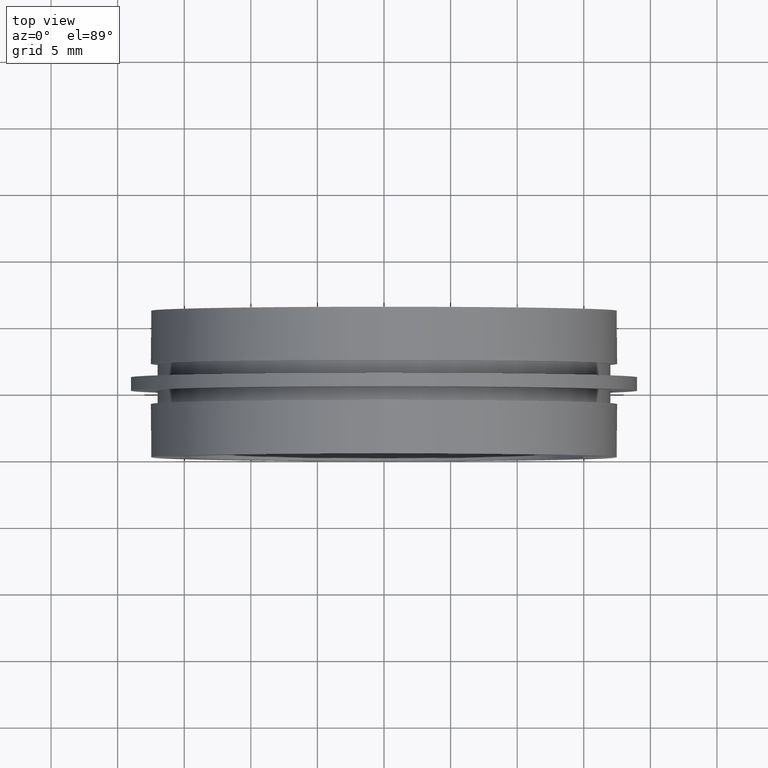
[diagram: clean part render]
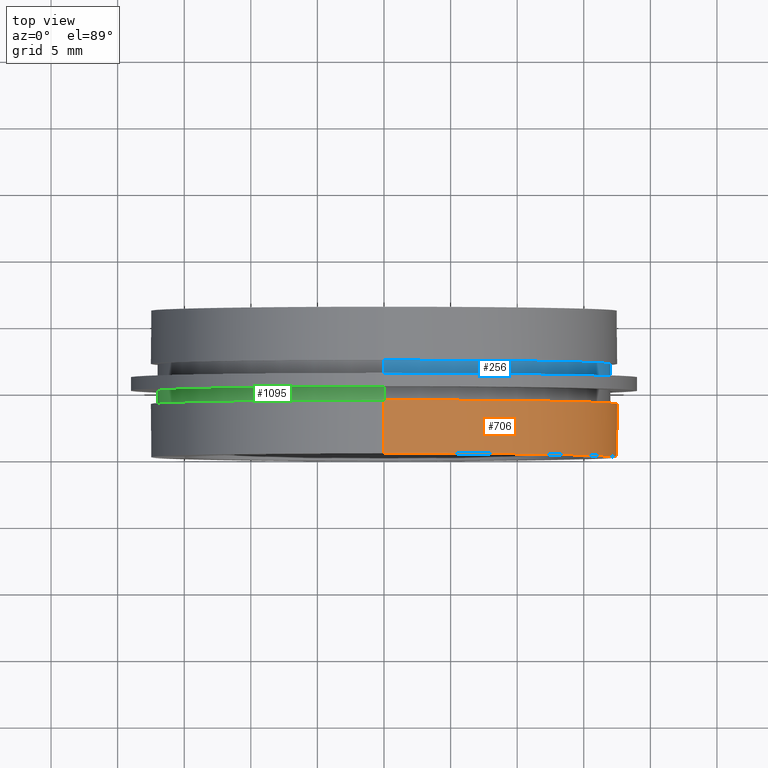
[diagram: same view with three faces highlighted in distinct colors, each labeled with its STEP entity id]
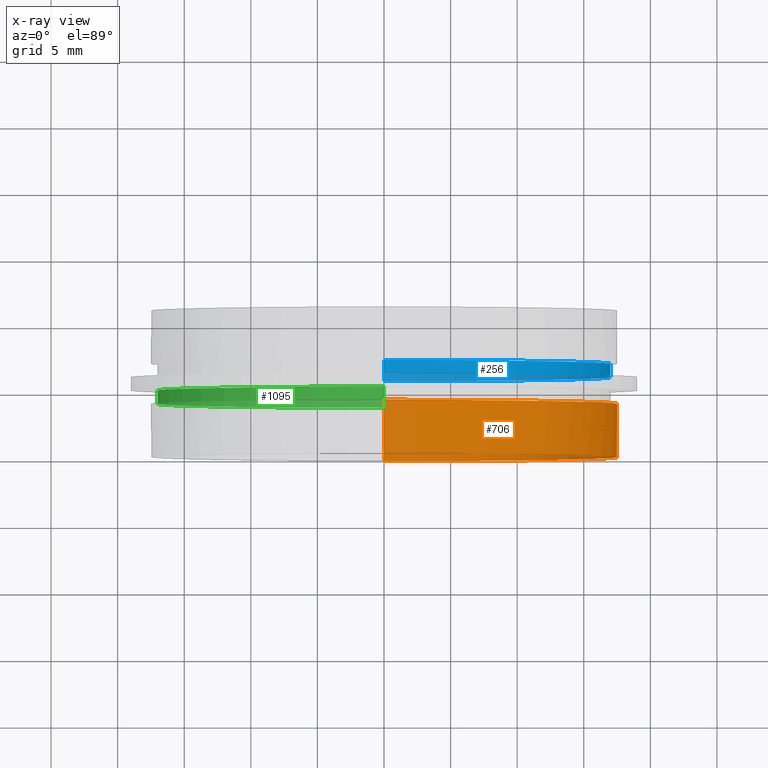
[diagram: x-ray of the same camera — body ghosted, the three highlighted faces saturated]
A machine part, top view with three faces highlighted in distinct colors.
The next image is the same camera in x-ray (body ghosted, the three faces saturated) — at least one of them is partly hidden behind the body in this view.
Their STEP definitions:

[orange] entity #706 — the highlighted cylindrical surface (partial cylindrical patch) has radius 17.5 mm, axis along (-0, 1, -0).
#9 = CIRCLE ( 'NONE', #638, 17.49999999999999600 ) ;
#32 = CARTESIAN_POINT ( 'NONE',  ( 0.0000000000000000000, 4.000000000000000000, 0.0000000000000000000 ) ) ;
#46 = FACE_OUTER_BOUND ( 'NONE', #1060, .T. ) ;
#91 = VECTOR ( 'NONE', #856, 1000.000000000000000 ) ;
#122 = AXIS2_PLACEMENT_3D ( 'NONE', #928, #667, #1113 ) ;
#134 = ORIENTED_EDGE ( 'NONE', *, *, #232, .T. ) ;
#147 = CARTESIAN_POINT ( 'NONE',  ( 0.0000000000000000000, 22.67749945107591400, 0.0000000000000000000 ) ) ;
#152 = CARTESIAN_POINT ( 'NONE',  ( 17.47140520965614400, 22.67749945107591400, 1.000000000000003800 ) ) ;
#188 = CARTESIAN_POINT ( 'NONE',  ( 2.143131898507867900E-015, 22.67749945107591400, -17.49999999999999600 ) ) ;
#220 = VECTOR ( 'NONE', #669, 1000.000000000000000 ) ;
#224 = DIRECTION ( 'NONE',  ( -0.0000000000000000000, 1.000000000000000000, -0.0000000000000000000 ) ) ;
#232 = EDGE_CURVE ( 'NONE', #605, #794, #9, .T. ) ;
#264 = DIRECTION ( 'NONE',  ( -0.0000000000000000000, 1.000000000000000000, -0.0000000000000000000 ) ) ;
#269 = VERTEX_POINT ( 'NONE', #452 ) ;
#270 = CIRCLE ( 'NONE', #1069, 17.49999999999999600 ) ;
#300 = VECTOR ( 'NONE', #840, 1000.000000000000000 ) ;
#305 = DIRECTION ( 'NONE',  ( -0.0000000000000000000, 1.000000000000000000, -0.0000000000000000000 ) ) ;
#313 = CARTESIAN_POINT ( 'NONE',  ( 0.0000000000000000000, 0.0000000000000000000, 17.49999999999999600 ) ) ;
#336 = DIRECTION ( 'NONE',  ( 0.0000000000000000000, 0.0000000000000000000, 1.000000000000000000 ) ) ;
#357 = VERTEX_POINT ( 'NONE', #414 ) ;
#366 = CARTESIAN_POINT ( 'NONE',  ( 17.47140520965614400, 1.999999999999998200, 1.000000000000000200 ) ) ;
#370 = EDGE_CURVE ( 'NONE', #269, #1062, #754, .T. ) ;
#373 = ORIENTED_EDGE ( 'NONE', *, *, #501, .F. ) ;
#407 = ORIENTED_EDGE ( 'NONE', *, *, #1124, .F. ) ;
#408 = LINE ( 'NONE', #152, #220 ) ;
#414 = CARTESIAN_POINT ( 'NONE',  ( 2.143131898507867900E-015, 0.0000000000000000000, -17.49999999999999600 ) ) ;
#452 = CARTESIAN_POINT ( 'NONE',  ( 17.47140520965614700, 2.000000000000000000, -0.9999999999999995600 ) ) ;
#501 = EDGE_CURVE ( 'NONE', #1062, #794, #408, .T. ) ;
#521 = CARTESIAN_POINT ( 'NONE',  ( 17.47140520965614400, 0.0000000000000000000, -1.000000000000000000 ) ) ;
#538 = ORIENTED_EDGE ( 'NONE', *, *, #800, .T. ) ;
#557 = CARTESIAN_POINT ( 'NONE',  ( 17.47140520965614400, 0.0000000000000000000, 1.000000000000000000 ) ) ;
#562 = VERTEX_POINT ( 'NONE', #1016 ) ;
#605 = VERTEX_POINT ( 'NONE', #313 ) ;
#613 = CARTESIAN_POINT ( 'NONE',  ( 0.0000000000000000000, 0.0000000000000000000, 0.0000000000000000000 ) ) ;
#624 = DIRECTION ( 'NONE',  ( -0.0000000000000000000, 1.000000000000000000, -0.0000000000000000000 ) ) ;
#628 = VECTOR ( 'NONE', #624, 1000.000000000000000 ) ;
#638 = AXIS2_PLACEMENT_3D ( 'NONE', #613, #264, #336 ) ;
#643 = DIRECTION ( 'NONE',  ( 0.0000000000000000000, 0.0000000000000000000, 1.000000000000000000 ) ) ;
#667 = DIRECTION ( 'NONE',  ( -0.0000000000000000000, -1.000000000000000000, -0.0000000000000000000 ) ) ;
#669 = DIRECTION ( 'NONE',  ( 0.0000000000000000000, -1.000000000000000000, 0.0000000000000000000 ) ) ;
#679 = AXIS2_PLACEMENT_3D ( 'NONE', #147, #1128, #940 ) ;
#680 = EDGE_CURVE ( 'NONE', #736, #269, #1054, .T. ) ;
#706 = ADVANCED_FACE ( 'NONE', ( #46 ), #1129, .T. ) ;
#729 = LINE ( 'NONE', #780, #628 ) ;
#736 = VERTEX_POINT ( 'NONE', #521 ) ;
#738 = VERTEX_POINT ( 'NONE', #1143 ) ;
#751 = CARTESIAN_POINT ( 'NONE',  ( 0.0000000000000000000, 0.0000000000000000000, 0.0000000000000000000 ) ) ;
#754 = CIRCLE ( 'NONE', #122, 17.49999999999999600 ) ;
#756 = CIRCLE ( 'NONE', #760, 17.49999999999999600 ) ;
#760 = AXIS2_PLACEMENT_3D ( 'NONE', #751, #224, #995 ) ;
#780 = CARTESIAN_POINT ( 'NONE',  ( 0.0000000000000000000, 22.67749945107591400, 17.49999999999999600 ) ) ;
#794 = VERTEX_POINT ( 'NONE', #557 ) ;
#800 = EDGE_CURVE ( 'NONE', #357, #562, #939, .T. ) ;
#814 = EDGE_CURVE ( 'NONE', #738, #562, #270, .T. ) ;
#840 = DIRECTION ( 'NONE',  ( -0.0000000000000000000, 1.000000000000000000, -0.0000000000000000000 ) ) ;
#856 = DIRECTION ( 'NONE',  ( -0.0000000000000000000, 1.000000000000000000, -0.0000000000000000000 ) ) ;
#860 = ORIENTED_EDGE ( 'NONE', *, *, #1094, .T. ) ;
#883 = ORIENTED_EDGE ( 'NONE', *, *, #814, .F. ) ;
#928 = CARTESIAN_POINT ( 'NONE',  ( 0.0000000000000000000, 1.999999999999998200, 0.0000000000000000000 ) ) ;
#939 = LINE ( 'NONE', #188, #300 ) ;
#940 = DIRECTION ( 'NONE',  ( 0.0000000000000000000, 0.0000000000000000000, 1.000000000000000000 ) ) ;
#995 = DIRECTION ( 'NONE',  ( 0.0000000000000000000, 0.0000000000000000000, 1.000000000000000000 ) ) ;
#1016 = CARTESIAN_POINT ( 'NONE',  ( 2.143131898507867900E-015, 4.000000000000000000, -17.49999999999999600 ) ) ;
#1021 = ORIENTED_EDGE ( 'NONE', *, *, #680, .F. ) ;
#1054 = LINE ( 'NONE', #1132, #91 ) ;
#1060 = EDGE_LOOP ( 'NONE', ( #860, #538, #883, #407, #134, #373, #1063, #1021 ) ) ;
#1062 = VERTEX_POINT ( 'NONE', #366 ) ;
#1063 = ORIENTED_EDGE ( 'NONE', *, *, #370, .F. ) ;
#1069 = AXIS2_PLACEMENT_3D ( 'NONE', #32, #305, #643 ) ;
#1094 = EDGE_CURVE ( 'NONE', #736, #357, #756, .T. ) ;
#1113 = DIRECTION ( 'NONE',  ( 3.730349362740526000E-014, 0.0000000000000000000, 1.000000000000000000 ) ) ;
#1124 = EDGE_CURVE ( 'NONE', #605, #738, #729, .T. ) ;
#1128 = DIRECTION ( 'NONE',  ( -0.0000000000000000000, 1.000000000000000000, -0.0000000000000000000 ) ) ;
#1129 = CYLINDRICAL_SURFACE ( 'NONE', #679, 17.49999999999999600 ) ;
#1132 = CARTESIAN_POINT ( 'NONE',  ( 17.47140520965614400, 22.67749945107591400, -0.9999999999999943400 ) ) ;
#1143 = CARTESIAN_POINT ( 'NONE',  ( 0.0000000000000000000, 4.000000000000000000, 17.49999999999999600 ) ) ;

[blue] entity #256 — the highlighted cylindrical surface (partial cylindrical patch) has radius 17 mm, axis along (-0, 1, -0).
#33 = CARTESIAN_POINT ( 'NONE',  ( 0.0000000000000000000, 22.67749945107591400, 0.0000000000000000000 ) ) ;
#47 = EDGE_CURVE ( 'NONE', #829, #413, #602, .T. ) ;
#77 = CARTESIAN_POINT ( 'NONE',  ( 0.0000000000000000000, 6.999999999999999100, 17.00000000000000400 ) ) ;
#83 = CARTESIAN_POINT ( 'NONE',  ( 2.081899558550500300E-015, 22.67749945107591400, -17.00000000000000000 ) ) ;
#137 = DIRECTION ( 'NONE',  ( -0.0000000000000000000, 1.000000000000000000, -0.0000000000000000000 ) ) ;
#190 = VERTEX_POINT ( 'NONE', #420 ) ;
#230 = CYLINDRICAL_SURFACE ( 'NONE', #470, 17.00000000000000000 ) ;
#256 = ADVANCED_FACE ( 'NONE', ( #746 ), #230, .T. ) ;
#278 = DIRECTION ( 'NONE',  ( 0.0000000000000000000, 0.0000000000000000000, 1.000000000000000000 ) ) ;
#282 = AXIS2_PLACEMENT_3D ( 'NONE', #851, #1126, #675 ) ;
#286 = LINE ( 'NONE', #83, #905 ) ;
#298 = ORIENTED_EDGE ( 'NONE', *, *, #702, .T. ) ;
#323 = DIRECTION ( 'NONE',  ( -0.0000000000000000000, 1.000000000000000000, -0.0000000000000000000 ) ) ;
#335 = CARTESIAN_POINT ( 'NONE',  ( 0.0000000000000000000, 5.999999999999998200, 17.00000000000000000 ) ) ;
#367 = ORIENTED_EDGE ( 'NONE', *, *, #1088, .F. ) ;
#382 = ORIENTED_EDGE ( 'NONE', *, *, #753, .T. ) ;
#398 = DIRECTION ( 'NONE',  ( -0.0000000000000000000, 1.000000000000000000, -0.0000000000000000000 ) ) ;
#413 = VERTEX_POINT ( 'NONE', #1140 ) ;
#420 = CARTESIAN_POINT ( 'NONE',  ( 2.081899558550500300E-015, 5.999999999999998200, -17.00000000000000000 ) ) ;
#470 = AXIS2_PLACEMENT_3D ( 'NONE', #33, #704, #278 ) ;
#602 = CIRCLE ( 'NONE', #811, 17.00000000000000400 ) ;
#635 = EDGE_LOOP ( 'NONE', ( #298, #382, #661, #367 ) ) ;
#649 = VECTOR ( 'NONE', #137, 1000.000000000000000 ) ;
#661 = ORIENTED_EDGE ( 'NONE', *, *, #47, .F. ) ;
#675 = DIRECTION ( 'NONE',  ( 0.0000000000000000000, 0.0000000000000000000, 1.000000000000000000 ) ) ;
#686 = CARTESIAN_POINT ( 'NONE',  ( 0.0000000000000000000, 22.67749945107591400, 17.00000000000000000 ) ) ;
#702 = EDGE_CURVE ( 'NONE', #709, #190, #965, .T. ) ;
#704 = DIRECTION ( 'NONE',  ( -0.0000000000000000000, 1.000000000000000000, -0.0000000000000000000 ) ) ;
#709 = VERTEX_POINT ( 'NONE', #335 ) ;
#746 = FACE_OUTER_BOUND ( 'NONE', #635, .T. ) ;
#753 = EDGE_CURVE ( 'NONE', #190, #413, #286, .T. ) ;
#770 = LINE ( 'NONE', #686, #649 ) ;
#811 = AXIS2_PLACEMENT_3D ( 'NONE', #923, #323, #835 ) ;
#829 = VERTEX_POINT ( 'NONE', #77 ) ;
#835 = DIRECTION ( 'NONE',  ( 0.0000000000000000000, 0.0000000000000000000, 1.000000000000000000 ) ) ;
#851 = CARTESIAN_POINT ( 'NONE',  ( 0.0000000000000000000, 5.999999999999998200, 0.0000000000000000000 ) ) ;
#905 = VECTOR ( 'NONE', #398, 1000.000000000000000 ) ;
#923 = CARTESIAN_POINT ( 'NONE',  ( 0.0000000000000000000, 6.999999999999999100, 0.0000000000000000000 ) ) ;
#965 = CIRCLE ( 'NONE', #282, 17.00000000000000000 ) ;
#1088 = EDGE_CURVE ( 'NONE', #709, #829, #770, .T. ) ;
#1126 = DIRECTION ( 'NONE',  ( -0.0000000000000000000, 1.000000000000000000, -0.0000000000000000000 ) ) ;
#1140 = CARTESIAN_POINT ( 'NONE',  ( 2.081899558550500700E-015, 6.999999999999999100, -17.00000000000000400 ) ) ;

[green] entity #1095 — the highlighted cylindrical surface (partial cylindrical patch) has radius 17 mm, axis along (-0, 1, -0).
#6 = DIRECTION ( 'NONE',  ( -0.0000000000000000000, 1.000000000000000000, -0.0000000000000000000 ) ) ;
#10 = CARTESIAN_POINT ( 'NONE',  ( 0.0000000000000000000, 22.67749945107591400, 17.00000000000000000 ) ) ;
#17 = AXIS2_PLACEMENT_3D ( 'NONE', #94, #1110, #1023 ) ;
#21 = DIRECTION ( 'NONE',  ( -0.0000000000000000000, 1.000000000000000000, -0.0000000000000000000 ) ) ;
#28 = VERTEX_POINT ( 'NONE', #194 ) ;
#51 = EDGE_LOOP ( 'NONE', ( #803, #514, #929, #541 ) ) ;
#79 = DIRECTION ( 'NONE',  ( 0.0000000000000000000, 0.0000000000000000000, 1.000000000000000000 ) ) ;
#90 = EDGE_CURVE ( 'NONE', #114, #609, #705, .T. ) ;
#94 = CARTESIAN_POINT ( 'NONE',  ( 0.0000000000000000000, 5.000000000000000900, 0.0000000000000000000 ) ) ;
#114 = VERTEX_POINT ( 'NONE', #472 ) ;
#118 = VERTEX_POINT ( 'NONE', #664 ) ;
#162 = VECTOR ( 'NONE', #21, 1000.000000000000000 ) ;
#194 = CARTESIAN_POINT ( 'NONE',  ( 2.081899558550500300E-015, 5.000000000000000900, -17.00000000000000000 ) ) ;
#246 = EDGE_CURVE ( 'NONE', #609, #118, #363, .T. ) ;
#315 = EDGE_CURVE ( 'NONE', #28, #118, #988, .T. ) ;
#363 = LINE ( 'NONE', #10, #666 ) ;
#472 = CARTESIAN_POINT ( 'NONE',  ( 2.081899558550499900E-015, 4.000000000000000000, -16.99999999999999600 ) ) ;
#493 = DIRECTION ( 'NONE',  ( 0.0000000000000000000, 0.0000000000000000000, 1.000000000000000000 ) ) ;
#514 = ORIENTED_EDGE ( 'NONE', *, *, #90, .T. ) ;
#541 = ORIENTED_EDGE ( 'NONE', *, *, #315, .F. ) ;
#568 = CYLINDRICAL_SURFACE ( 'NONE', #739, 17.00000000000000000 ) ;
#577 = DIRECTION ( 'NONE',  ( -0.0000000000000000000, 1.000000000000000000, -0.0000000000000000000 ) ) ;
#609 = VERTEX_POINT ( 'NONE', #1011 ) ;
#664 = CARTESIAN_POINT ( 'NONE',  ( 0.0000000000000000000, 5.000000000000000900, 17.00000000000000000 ) ) ;
#666 = VECTOR ( 'NONE', #1044, 1000.000000000000000 ) ;
#705 = CIRCLE ( 'NONE', #1145, 16.99999999999999600 ) ;
#712 = CARTESIAN_POINT ( 'NONE',  ( 0.0000000000000000000, 22.67749945107591400, 0.0000000000000000000 ) ) ;
#739 = AXIS2_PLACEMENT_3D ( 'NONE', #712, #6, #493 ) ;
#803 = ORIENTED_EDGE ( 'NONE', *, *, #958, .F. ) ;
#810 = FACE_OUTER_BOUND ( 'NONE', #51, .T. ) ;
#823 = CARTESIAN_POINT ( 'NONE',  ( 2.081899558550500300E-015, 22.67749945107591400, -17.00000000000000000 ) ) ;
#929 = ORIENTED_EDGE ( 'NONE', *, *, #246, .T. ) ;
#958 = EDGE_CURVE ( 'NONE', #114, #28, #1064, .T. ) ;
#988 = CIRCLE ( 'NONE', #17, 17.00000000000000000 ) ;
#1011 = CARTESIAN_POINT ( 'NONE',  ( 0.0000000000000000000, 4.000000000000000000, 16.99999999999999600 ) ) ;
#1023 = DIRECTION ( 'NONE',  ( 0.0000000000000000000, 0.0000000000000000000, 1.000000000000000000 ) ) ;
#1044 = DIRECTION ( 'NONE',  ( -0.0000000000000000000, 1.000000000000000000, -0.0000000000000000000 ) ) ;
#1064 = LINE ( 'NONE', #823, #162 ) ;
#1095 = ADVANCED_FACE ( 'NONE', ( #810 ), #568, .T. ) ;
#1109 = CARTESIAN_POINT ( 'NONE',  ( 0.0000000000000000000, 4.000000000000000000, 0.0000000000000000000 ) ) ;
#1110 = DIRECTION ( 'NONE',  ( -0.0000000000000000000, 1.000000000000000000, -0.0000000000000000000 ) ) ;
#1145 = AXIS2_PLACEMENT_3D ( 'NONE', #1109, #577, #79 ) ;